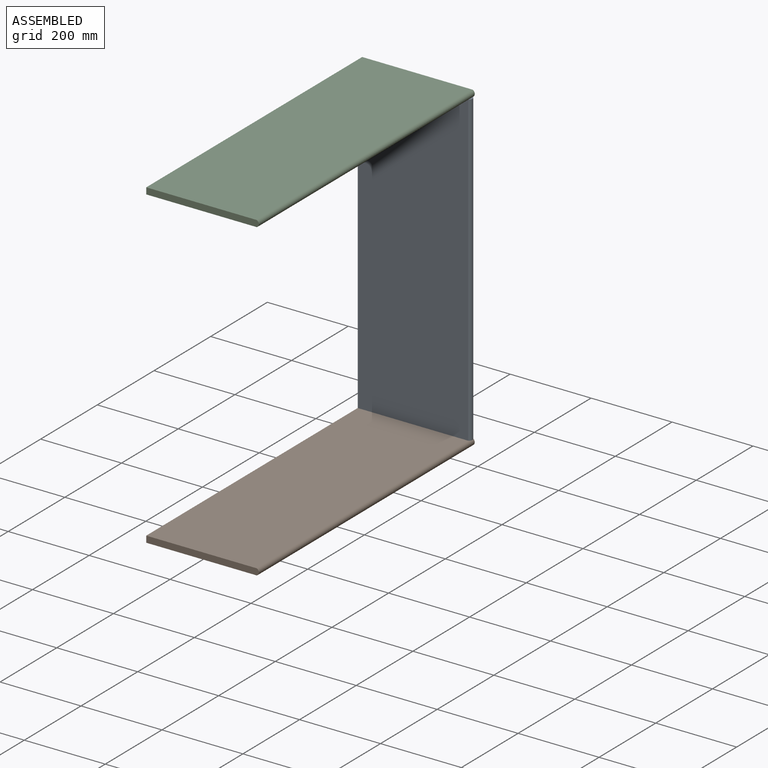
[diagram: assembled view]
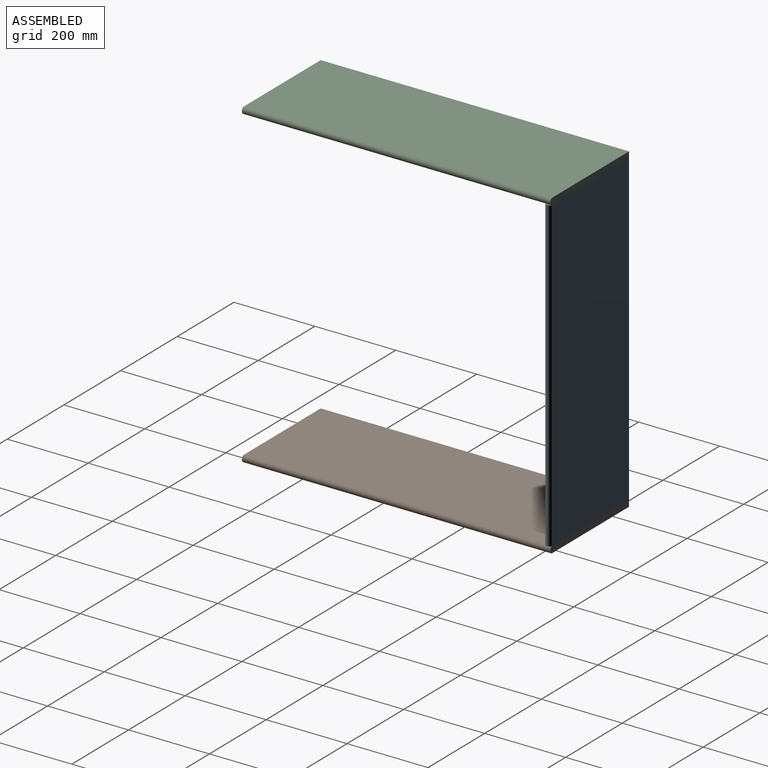
[diagram: assembled view, second angle]
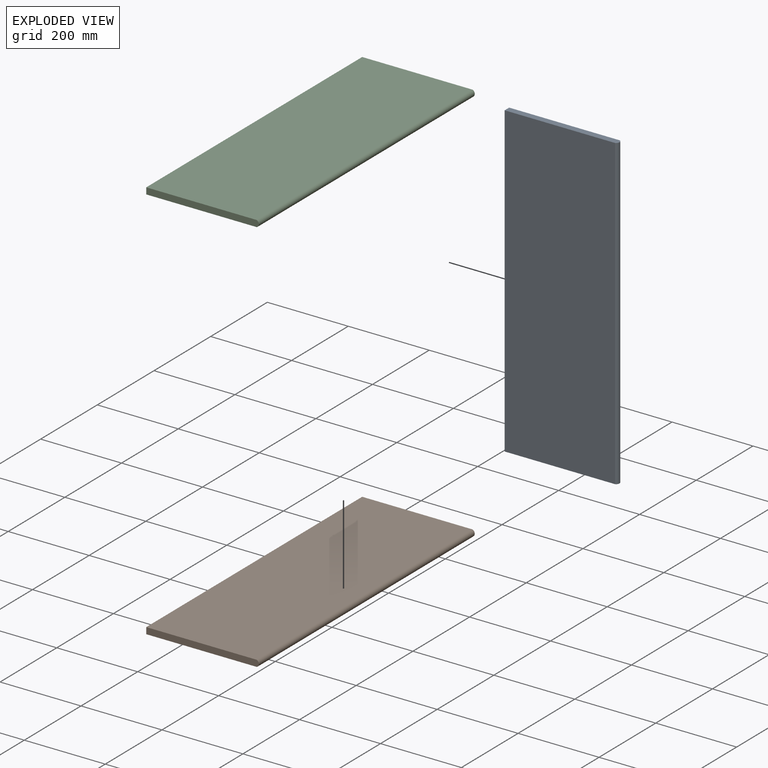
[diagram: exploded view]
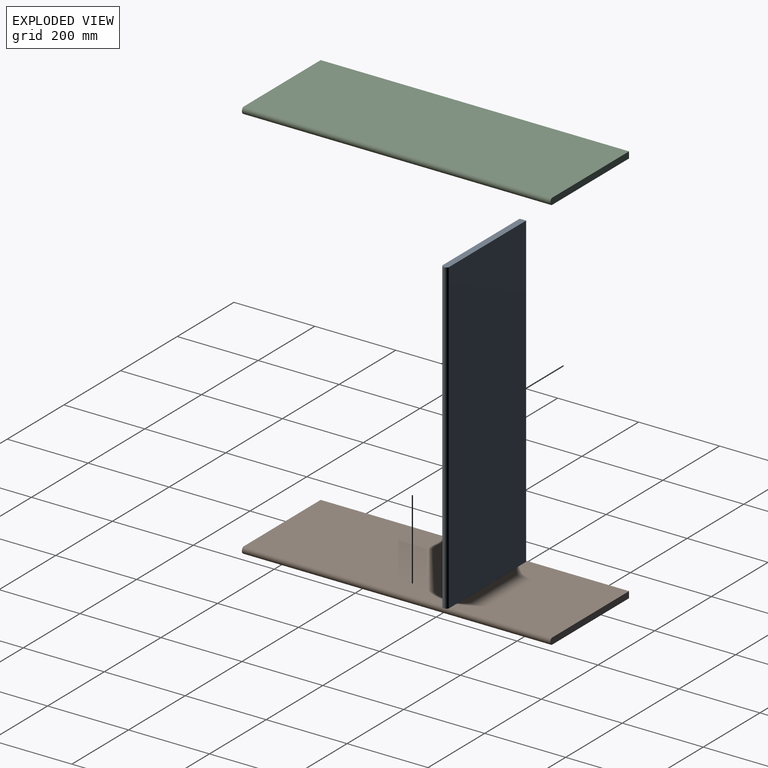
[diagram: exploded view, second angle]
ASSEMBLY  parts=3 mates=3
PART A: 6 faces, bbox 278.1x762x15.9 mm
  f0: plane 762x273.05mm, normal (0,0,1), area 208064.1mm2, adj f1,f3,f4,f5
  f1: cylinder r=8.74mm len=762mm, axis (0,1,0), area 15168.3mm2, adj f0,f2,f4,f5
  f2: plane 762x273.05mm, normal (0,0,-1), area 208064.1mm2, adj f1,f3,f4,f5
  f3: plane 762x15.88mm, normal (1,0,0), area 12096.8mm2, adj f0,f2,f4,f5
  f4: plane 278.13x15.88mm, normal (0,-1,0), area 4392.6mm2, adj f0,f1,f2,f3
  f5: plane 278.13x15.88mm, normal (0,1,0), area 4392.6mm2, adj f0,f1,f2,f3
PART B: same geometry as A
PART C: same geometry as A
PLACE A rot(axis=(0,0.71,0.71),180deg) t=(68.73,-718.72,-59.41)mm
PLACE B rot(axis=(0,0,1),180deg) t=(68.73,-1472.78,-829.34)mm
PLACE C rot(axis=(0,0,-1),180deg) t=(68.73,-1472.78,-51.47)mm
MATE planar B.f0 <-> A.f4  axis (0,0,1) through (68.73,-1091.78,-821.41)mm
MATE planar A.f0 <-> B.f4  axis (0,1,0) through (68.73,-710.78,-821.41)mm
MATE fastened C.f3 <-> A.f3  axis (-1,0,0) through (-67.8,-710.78,-59.41)mm
